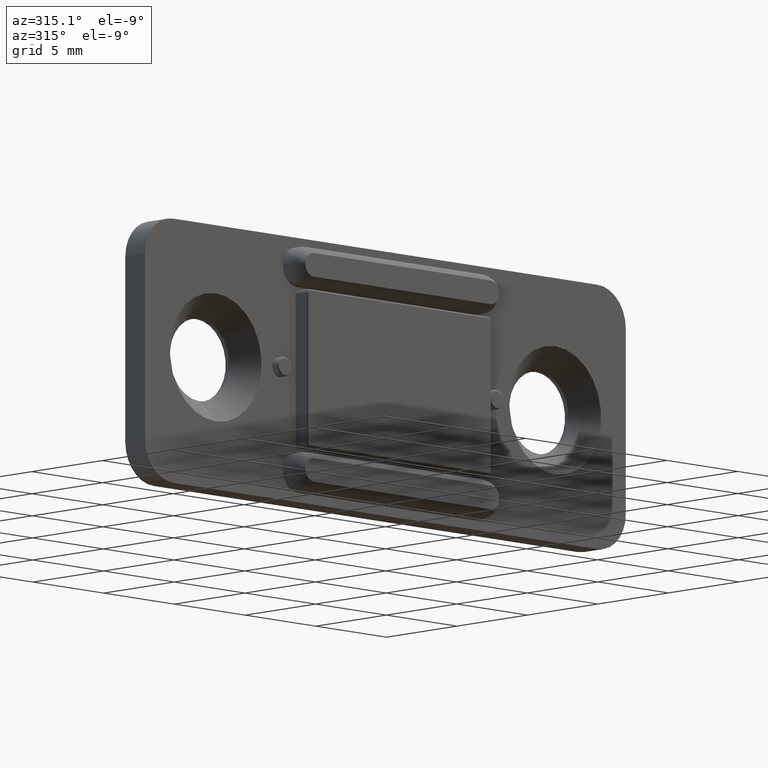
[diagram: clean part render]
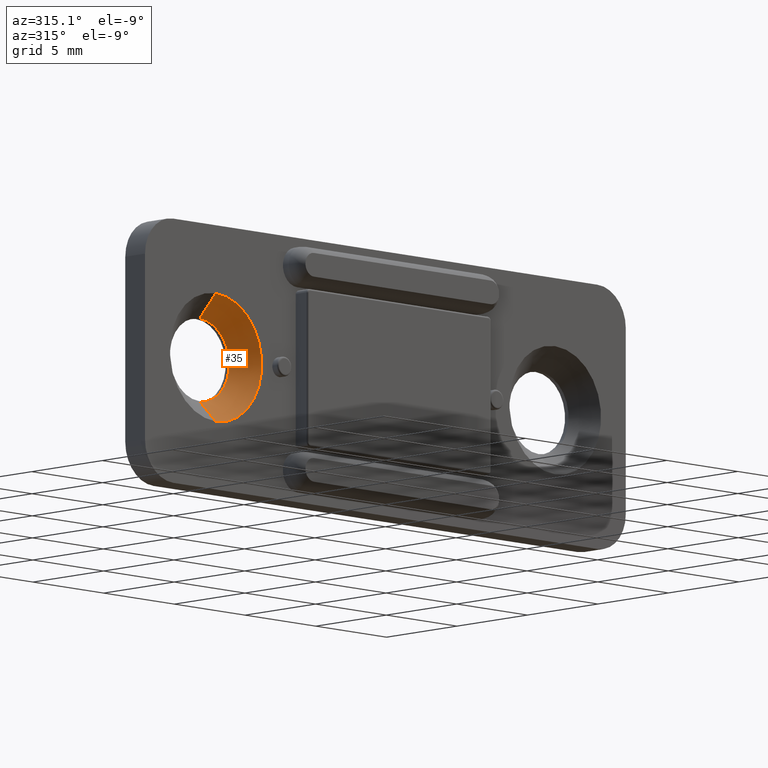
[diagram: same view with one face highlighted and labeled with its STEP entity id]
A machine part, auxiliary view. The second image highlights one B-rep face of the part: STEP entity #35.
In plain terms, the highlighted conical surface has half-angle 45 deg.
Its self-contained STEP definition (entity closure, byte-faithful):
#24 = CARTESIAN_POINT ( 'NONE',  ( -12.00000000000000000, 1.989519660128279800E-013, -3.250000000000206100 ) ) ;
#35 = ADVANCED_FACE ( 'NONE', ( #650 ), #165, .F. ) ;
#86 = CIRCLE ( 'NONE', #973, 3.250000000000229600 ) ;
#109 = VERTEX_POINT ( 'NONE', #2025 ) ;
#113 = DIRECTION ( 'NONE',  ( 0.0000000000000000000, 0.0000000000000000000, -1.000000000000000000 ) ) ;
#165 = CONICAL_SURFACE ( 'NONE', #541, 2.100000000000000100, 0.7853981633974984600 ) ;
#170 = VERTEX_POINT ( 'NONE', #24 ) ;
#225 = DIRECTION ( 'NONE',  ( 0.0000000000000000000, 1.000000000000000000, 0.0000000000000000000 ) ) ;
#283 = CARTESIAN_POINT ( 'NONE',  ( -12.00000000000000000, 1.150000000000289900, 0.0000000000000000000 ) ) ;
#296 = EDGE_CURVE ( 'NONE', #2177, #1870, #1457, .T. ) ;
#315 = ORIENTED_EDGE ( 'NONE', *, *, #296, .T. ) ;
#427 = ORIENTED_EDGE ( 'NONE', *, *, #797, .F. ) ;
#458 = CARTESIAN_POINT ( 'NONE',  ( -12.00000000000000000, 1.150000000000289900, 2.100000000000000100 ) ) ;
#462 = DIRECTION ( 'NONE',  ( 0.0000000000000000000, -0.7071067811865120500, -0.7071067811865829900 ) ) ;
#468 = CARTESIAN_POINT ( 'NONE',  ( -12.00000000000000000, 1.150000000000289900, 2.100000000000000100 ) ) ;
#541 = AXIS2_PLACEMENT_3D ( 'NONE', #283, #1291, #113 ) ;
#597 = CARTESIAN_POINT ( 'NONE',  ( -12.00000000000000000, 1.989519660128279800E-013, 0.0000000000000000000 ) ) ;
#644 = EDGE_CURVE ( 'NONE', #1870, #170, #1156, .T. ) ;
#650 = FACE_OUTER_BOUND ( 'NONE', #1569, .T. ) ;
#758 = DIRECTION ( 'NONE',  ( 0.0000000000000000000, 0.0000000000000000000, 1.000000000000000000 ) ) ;
#797 = EDGE_CURVE ( 'NONE', #109, #170, #86, .T. ) ;
#891 = ORIENTED_EDGE ( 'NONE', *, *, #953, .F. ) ;
#915 = CARTESIAN_POINT ( 'NONE',  ( -12.00000000000000000, 1.150000000000289900, -2.100000000000000100 ) ) ;
#944 = ORIENTED_EDGE ( 'NONE', *, *, #644, .T. ) ;
#953 = EDGE_CURVE ( 'NONE', #2177, #109, #1782, .T. ) ;
#958 = DIRECTION ( 'NONE',  ( 8.659560562355366700E-017, -0.7071067811865120500, 0.7071067811865829900 ) ) ;
#973 = AXIS2_PLACEMENT_3D ( 'NONE', #597, #1771, #758 ) ;
#1152 = AXIS2_PLACEMENT_3D ( 'NONE', #1202, #225, #1384 ) ;
#1156 = LINE ( 'NONE', #915, #2034 ) ;
#1202 = CARTESIAN_POINT ( 'NONE',  ( -12.00000000000000000, 1.150000000000289900, 0.0000000000000000000 ) ) ;
#1291 = DIRECTION ( 'NONE',  ( 0.0000000000000000000, -1.000000000000000000, 0.0000000000000000000 ) ) ;
#1318 = VECTOR ( 'NONE', #958, 1000.000000000000000 ) ;
#1384 = DIRECTION ( 'NONE',  ( 0.0000000000000000000, 0.0000000000000000000, 1.000000000000000000 ) ) ;
#1457 = CIRCLE ( 'NONE', #1152, 2.100000000000000100 ) ;
#1470 = CARTESIAN_POINT ( 'NONE',  ( -12.00000000000000000, 1.150000000000289900, -2.100000000000000100 ) ) ;
#1569 = EDGE_LOOP ( 'NONE', ( #891, #315, #944, #427 ) ) ;
#1771 = DIRECTION ( 'NONE',  ( 0.0000000000000000000, 1.000000000000000000, 0.0000000000000000000 ) ) ;
#1782 = LINE ( 'NONE', #468, #1318 ) ;
#1870 = VERTEX_POINT ( 'NONE', #1470 ) ;
#2025 = CARTESIAN_POINT ( 'NONE',  ( -12.00000000000000000, 1.989519660128279800E-013, 3.250000000000206100 ) ) ;
#2034 = VECTOR ( 'NONE', #462, 1000.000000000000000 ) ;
#2177 = VERTEX_POINT ( 'NONE', #458 ) ;